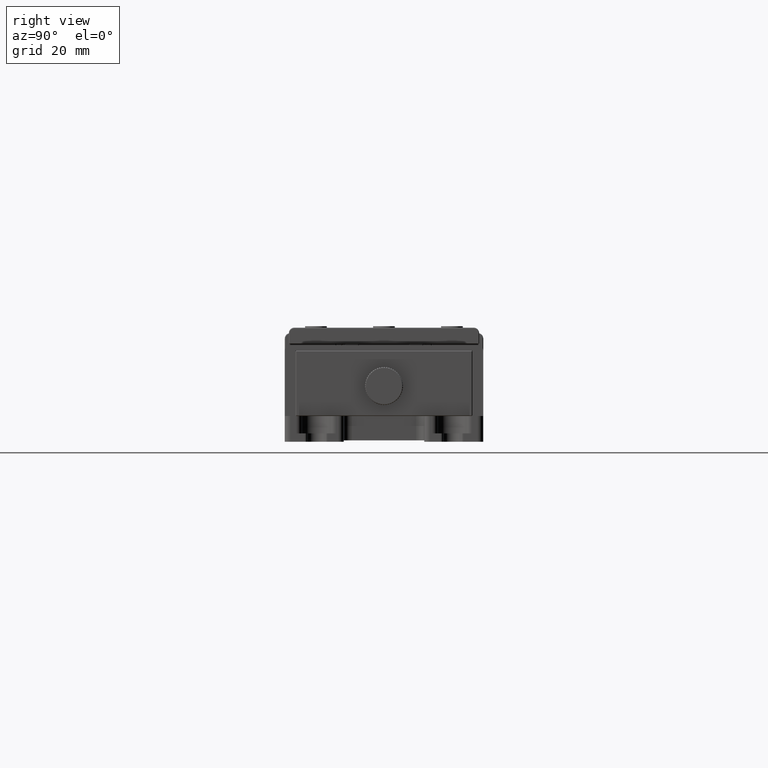
[diagram: clean part render]
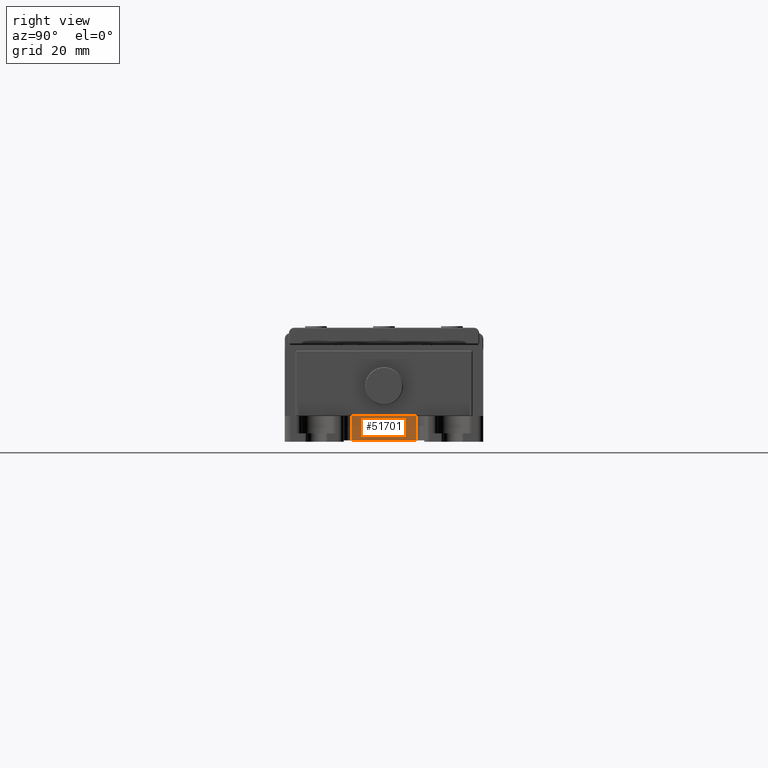
[diagram: same view with one face highlighted and labeled with its STEP entity id]
A machine part, right view. The second image highlights one B-rep face of the part: STEP entity #51701.
In plain terms, the highlighted planar face has unit normal (-1, 0, 0).
Its self-contained STEP definition (entity closure, byte-faithful):
#1223 = FACE_OUTER_BOUND ( 'NONE', #16857, .T. ) ;
#1634 = VERTEX_POINT ( 'NONE', #25594 ) ;
#1919 = DIRECTION ( 'NONE',  ( 0.000000000000000000, 0.000000000000000000, 1.000000000000000000 ) ) ;
#2597 = PLANE ( 'NONE',  #52550 ) ;
#2823 = CARTESIAN_POINT ( 'NONE',  ( 91.57474001859770851, -20.76919745025280051, -5.000000000000000000 ) ) ;
#3832 = VECTOR ( 'NONE', #31281, 1000.000000000000000 ) ;
#7263 = CARTESIAN_POINT ( 'NONE',  ( 91.57474001859770851, 2.830802549747215124, 4.000000000000000000 ) ) ;
#7267 = EDGE_CURVE ( 'NONE', #13987, #1634, #34179, .T. ) ;
#9279 = DIRECTION ( 'NONE',  ( 0.000000000000000000, 1.000000000000000000, 0.000000000000000000 ) ) ;
#9715 = ORIENTED_EDGE ( 'NONE', *, *, #43245, .F. ) ;
#12105 = VERTEX_POINT ( 'NONE', #42598 ) ;
#13987 = VERTEX_POINT ( 'NONE', #32206 ) ;
#14824 = CARTESIAN_POINT ( 'NONE',  ( 91.57474001859770851, -27.76919745025280051, 4.000000000000000000 ) ) ;
#14954 = LINE ( 'NONE', #2823, #56082 ) ;
#14972 = CARTESIAN_POINT ( 'NONE',  ( 91.57474001859770851, 2.830802549747215124, 3.000000000000000000 ) ) ;
#16857 = EDGE_LOOP ( 'NONE', ( #35014, #56647, #9715, #35463 ) ) ;
#18045 = EDGE_CURVE ( 'NONE', #1634, #53373, #61829, .T. ) ;
#25594 = CARTESIAN_POINT ( 'NONE',  ( 91.57474001859770851, 2.830802549747215124, -5.000000000000000000 ) ) ;
#26428 = VECTOR ( 'NONE', #9279, 1000.000000000000000 ) ;
#28562 = VECTOR ( 'NONE', #28620, 1000.000000000000000 ) ;
#28620 = DIRECTION ( 'NONE',  ( 0.000000000000000000, 1.000000000000000000, 0.000000000000000000 ) ) ;
#29305 = CARTESIAN_POINT ( 'NONE',  ( 91.57474001859770851, 26.03080254974719665, -5.000000000000000000 ) ) ;
#31281 = DIRECTION ( 'NONE',  ( 0.000000000000000000, 0.000000000000000000, 1.000000000000000000 ) ) ;
#32206 = CARTESIAN_POINT ( 'NONE',  ( 91.57474001859770851, -20.76919745025280051, -5.000000000000000000 ) ) ;
#32812 = DIRECTION ( 'NONE',  ( -1.000000000000000000, 0.000000000000000000, 0.000000000000000000 ) ) ;
#34179 = LINE ( 'NONE', #29305, #28562 ) ;
#35014 = ORIENTED_EDGE ( 'NONE', *, *, #7267, .T. ) ;
#35463 = ORIENTED_EDGE ( 'NONE', *, *, #53172, .T. ) ;
#39043 = CARTESIAN_POINT ( 'NONE',  ( 91.57474001859770851, 26.03080254974719665, 5.000000000000000000 ) ) ;
#42598 = CARTESIAN_POINT ( 'NONE',  ( 91.57474001859770851, -20.76919745025280051, 4.000000000000000000 ) ) ;
#43245 = EDGE_CURVE ( 'NONE', #12105, #53373, #45711, .T. ) ;
#45160 = DIRECTION ( 'NONE',  ( 0.000000000000000000, 0.000000000000000000, -1.000000000000000000 ) ) ;
#45711 = LINE ( 'NONE', #14824, #26428 ) ;
#51701 = ADVANCED_FACE ( 'NONE', ( #1223 ), #2597, .F. ) ;
#52550 = AXIS2_PLACEMENT_3D ( 'NONE', #39043, #32812, #1919 ) ;
#53172 = EDGE_CURVE ( 'NONE', #12105, #13987, #14954, .T. ) ;
#53373 = VERTEX_POINT ( 'NONE', #7263 ) ;
#56082 = VECTOR ( 'NONE', #45160, 1000.000000000000000 ) ;
#56647 = ORIENTED_EDGE ( 'NONE', *, *, #18045, .T. ) ;
#61829 = LINE ( 'NONE', #14972, #3832 ) ;